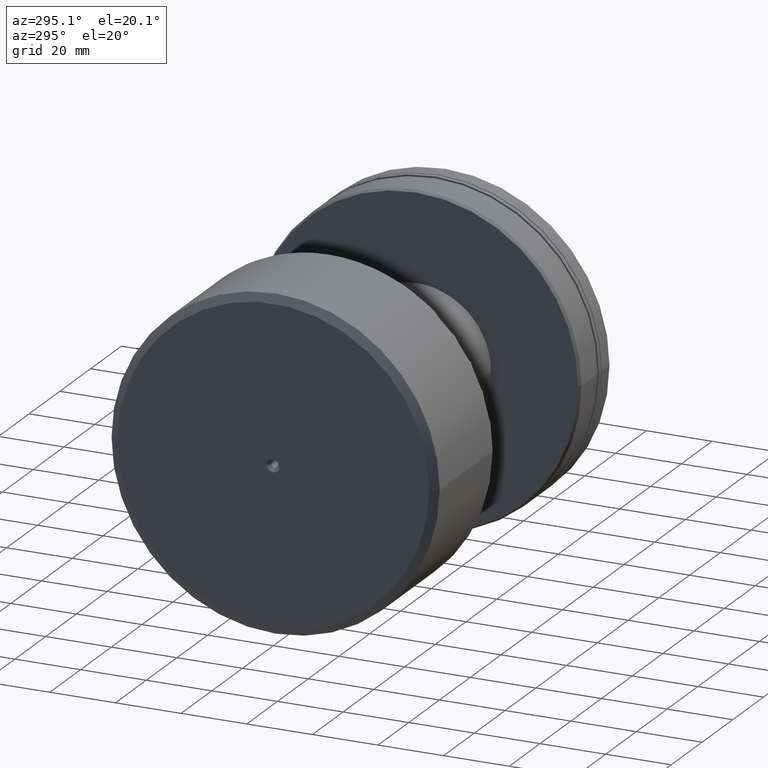
[diagram: clean part render]
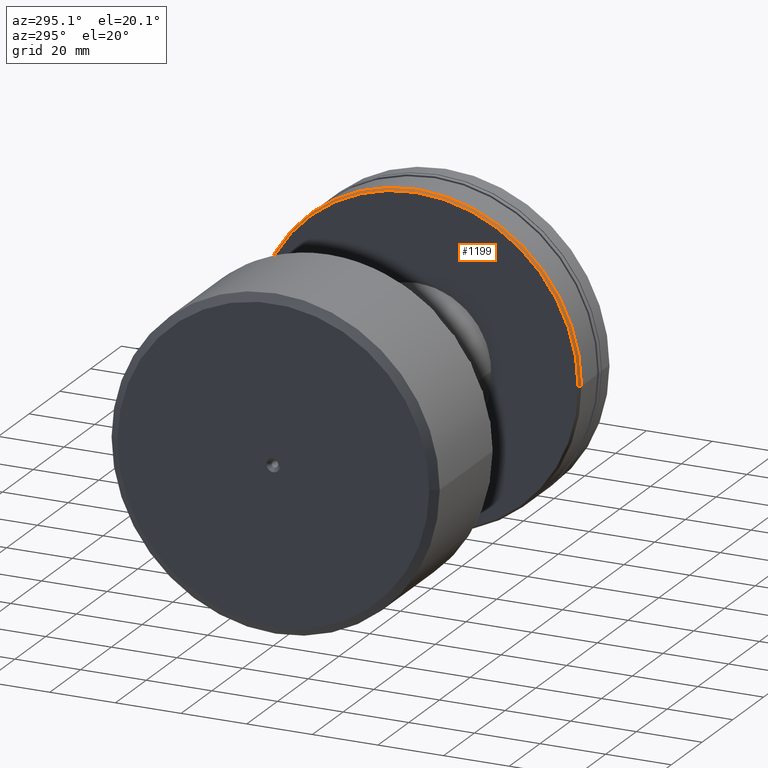
[diagram: same view with one face highlighted and labeled with its STEP entity id]
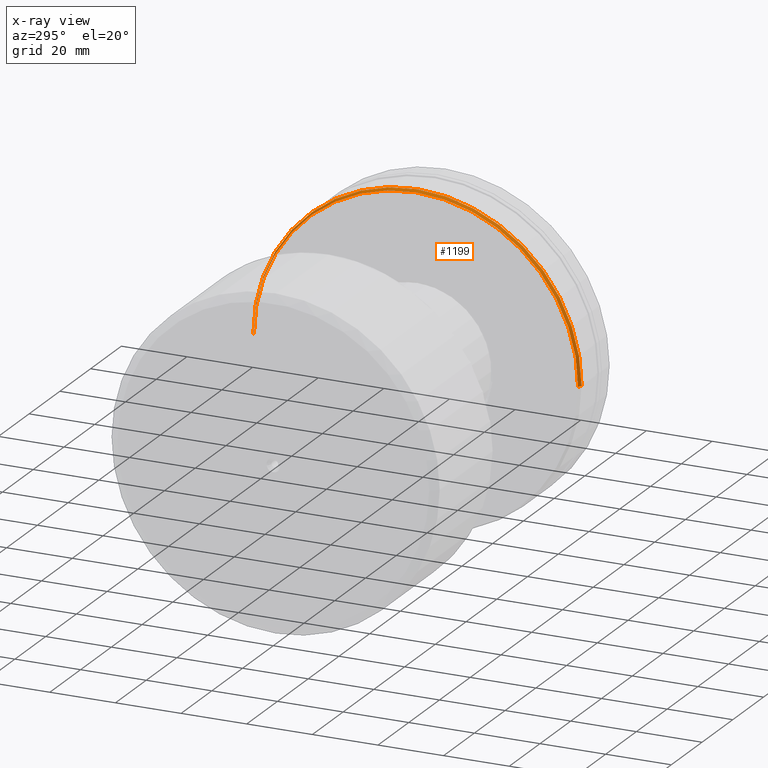
[diagram: x-ray of the same camera — body ghosted, the highlighted face saturated]
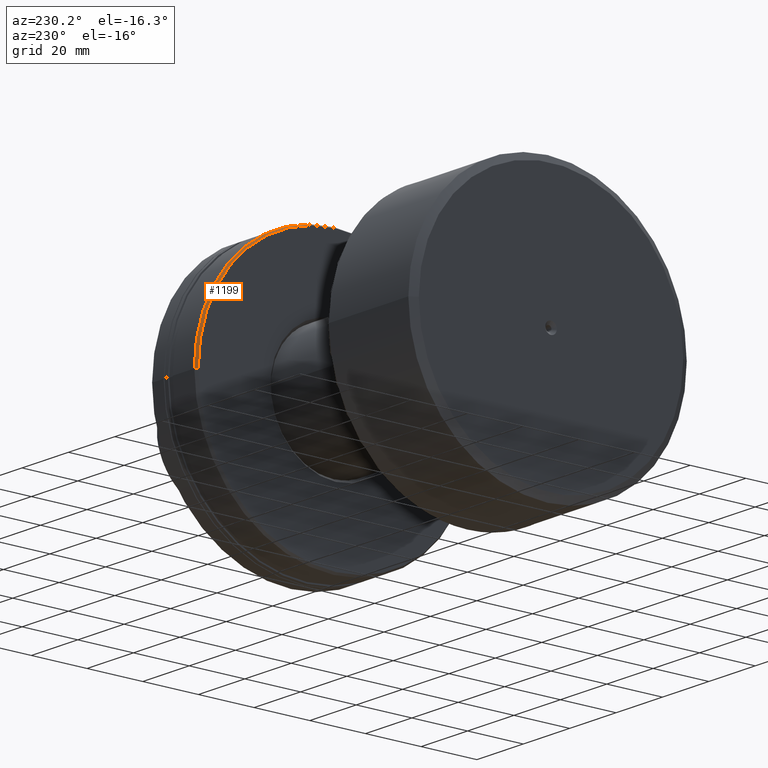
[diagram: same view with one face highlighted and labeled with its STEP entity id]
A machine part, auxiliary view. The second image highlights one B-rep face of the part: STEP entity #1199.
The next image is the same camera in x-ray: the body ghosted, the highlighted face saturated — about 4% of this face is hidden behind the body in this view.
A second angle (auxiliary view) of the same face is appended — the face is thin or edge-on in the first view.
In plain terms, the highlighted conical surface has half-angle 30 deg.
Its self-contained STEP definition (entity closure, byte-faithful):
#94 = EDGE_CURVE ( 'NONE', #1474, #726, #2058, .T. ) ;
#115 = CONICAL_SURFACE ( 'NONE', #613, 49.42264973081048396, 0.5235987755982989267 ) ;
#151 = EDGE_LOOP ( 'NONE', ( #754, #419, #2183, #791 ) ) ;
#189 = DIRECTION ( 'NONE',  ( 1.000000000000000000, 2.485414848852932351E-16, -0.000000000000000000 ) ) ;
#209 = EDGE_CURVE ( 'NONE', #2201, #2179, #353, .T. ) ;
#340 = DIRECTION ( 'NONE',  ( -2.807981337180902194E-16, 1.000000000000000000, 0.000000000000000000 ) ) ;
#353 = LINE ( 'NONE', #1235, #1135 ) ;
#419 = ORIENTED_EDGE ( 'NONE', *, *, #209, .T. ) ;
#437 = EDGE_CURVE ( 'NONE', #726, #2179, #753, .T. ) ;
#487 = DIRECTION ( 'NONE',  ( 0.8660254037844384856, 0.5000000000000002220, 0.000000000000000000 ) ) ;
#541 = CIRCLE ( 'NONE', #1822, 49.42264973081048396 ) ;
#542 = DIRECTION ( 'NONE',  ( 0.8660254037844387076, -0.4999999999999997780, 6.123233995736766036E-17 ) ) ;
#613 = AXIS2_PLACEMENT_3D ( 'NONE', #2161, #189, #1301 ) ;
#637 = CARTESIAN_POINT ( 'NONE',  ( -44.20000000000018048, -3.459691811077403828E-15, 0.000000000000000000 ) ) ;
#656 = CARTESIAN_POINT ( 'NONE',  ( -45.20000000000001705, 49.42264973081047685, 0.000000000000000000 ) ) ;
#719 = CARTESIAN_POINT ( 'NONE',  ( -45.20000000000000284, -3.708233295962651802E-15, 0.000000000000000000 ) ) ;
#726 = VERTEX_POINT ( 'NONE', #1148 ) ;
#753 = CIRCLE ( 'NONE', #1060, 50.00000000000000000 ) ;
#754 = ORIENTED_EDGE ( 'NONE', *, *, #1880, .T. ) ;
#791 = ORIENTED_EDGE ( 'NONE', *, *, #94, .F. ) ;
#1060 = AXIS2_PLACEMENT_3D ( 'NONE', #637, #1431, #2199 ) ;
#1135 = VECTOR ( 'NONE', #542, 1000.000000000000227 ) ;
#1148 = CARTESIAN_POINT ( 'NONE',  ( -44.20000000000019469, 49.99999999999999289, 0.000000000000000000 ) ) ;
#1199 = ADVANCED_FACE ( 'NONE', ( #1809 ), #115, .T. ) ;
#1235 = CARTESIAN_POINT ( 'NONE',  ( -45.19999999999998863, -49.42264973081049106, 6.052528979821785225E-15 ) ) ;
#1301 = DIRECTION ( 'NONE',  ( -2.807981337180902194E-16, 1.000000000000000000, 0.000000000000000000 ) ) ;
#1431 = DIRECTION ( 'NONE',  ( 1.000000000000000000, 2.485414848852932351E-16, -0.000000000000000000 ) ) ;
#1462 = CARTESIAN_POINT ( 'NONE',  ( -45.20000000000001705, 49.42264973081047685, 0.000000000000000000 ) ) ;
#1474 = VERTEX_POINT ( 'NONE', #1462 ) ;
#1524 = CARTESIAN_POINT ( 'NONE',  ( -45.19999999999998863, -49.42264973081049106, 6.087881487779275655E-15 ) ) ;
#1587 = VECTOR ( 'NONE', #487, 1000.000000000000227 ) ;
#1809 = FACE_OUTER_BOUND ( 'NONE', #151, .T. ) ;
#1822 = AXIS2_PLACEMENT_3D ( 'NONE', #719, #2146, #340 ) ;
#1879 = CARTESIAN_POINT ( 'NONE',  ( -44.20000000000016627, -50.00000000000000711, 6.123233995736766085E-15 ) ) ;
#1880 = EDGE_CURVE ( 'NONE', #1474, #2201, #541, .T. ) ;
#2058 = LINE ( 'NONE', #656, #1587 ) ;
#2146 = DIRECTION ( 'NONE',  ( 1.000000000000000000, 2.485414848852932351E-16, -0.000000000000000000 ) ) ;
#2161 = CARTESIAN_POINT ( 'NONE',  ( -45.20000000000000284, -3.708233295962651802E-15, 0.000000000000000000 ) ) ;
#2179 = VERTEX_POINT ( 'NONE', #1879 ) ;
#2183 = ORIENTED_EDGE ( 'NONE', *, *, #437, .F. ) ;
#2199 = DIRECTION ( 'NONE',  ( -2.775557561562891351E-16, 1.000000000000000000, 0.000000000000000000 ) ) ;
#2201 = VERTEX_POINT ( 'NONE', #1524 ) ;